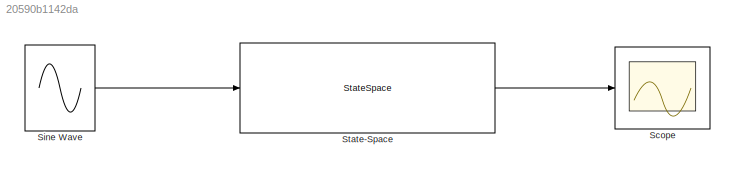
MODEL slx_20590b1142da
KIND model
CONFIG AbsTol = auto
CONFIG EnableMultiTasking = off
CONFIG FixedStep = auto
CONFIG MaxStep = auto
CONFIG MinStep = auto
CONFIG RelTol = 1e-3
CONFIG SampleTimeConstraint = Unconstrained
CONFIG Solver = VariableStepAuto
CONFIG SolverName = VariableStepAuto
CONFIG StartTime = 0.0
CONFIG StopTime = 1.5
BLOCK [Scope] Scope
  Floating = off
  NumInputPorts = 1
  Ports = [1]
  ScopeSpecificationString = Simulink.scopes.TimeScopeBlockCfg('CurrentConfiguration', extmgr.ConfigurationSet(extmgr.Configuration('Core','General UI',true),extmgr.Configuration('Core','Source UI',true),extmgr.Configuration('Sources','WiredSimulink',true),extmgr.Configuration('Visuals','Time Domain',true,'SerializedDisplays',{struct('MinYLimReal','-0.63497','MaxYLimReal','0.63507','YLabelReal','','MinYLimMag','0.00000','MaxY...<+1367ch>
BLOCK [Sin] Sine Wave
  Amplitude = 0.5
  Frequency = 10
  Ports = [0, 1]
  SampleTime = 0
BLOCK [StateSpace] State-Space
  A = [-20 -100;25 -62.5]
  B = [100;62.5]
  C = [0 1]
  D = [0]
  InitialCondition = 0.25
  Ports = [1, 1]
LINE Sine Wave:1 -> State-Space:1
LINE State-Space:1 -> Scope:1
